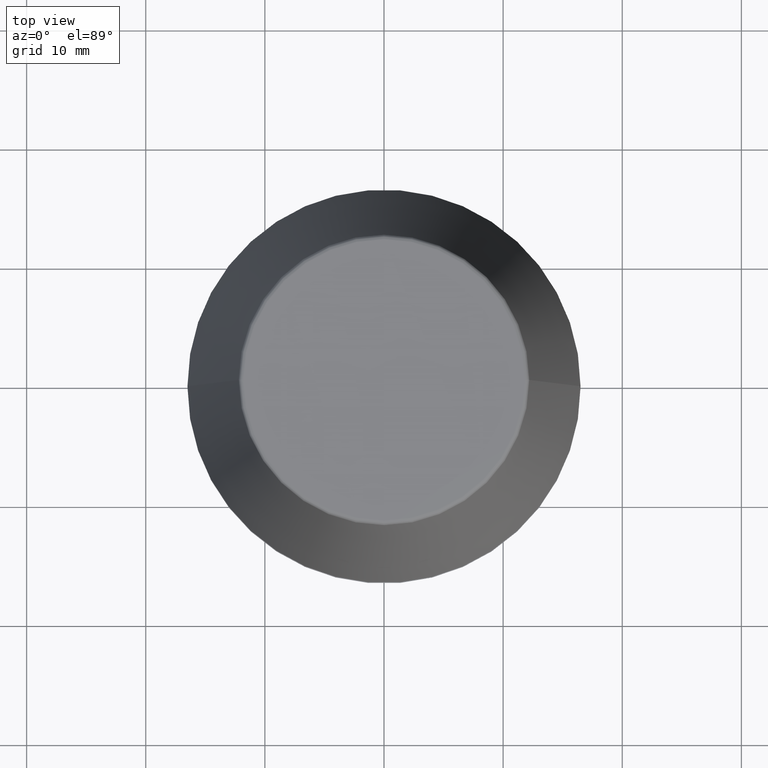
[diagram: clean part render]
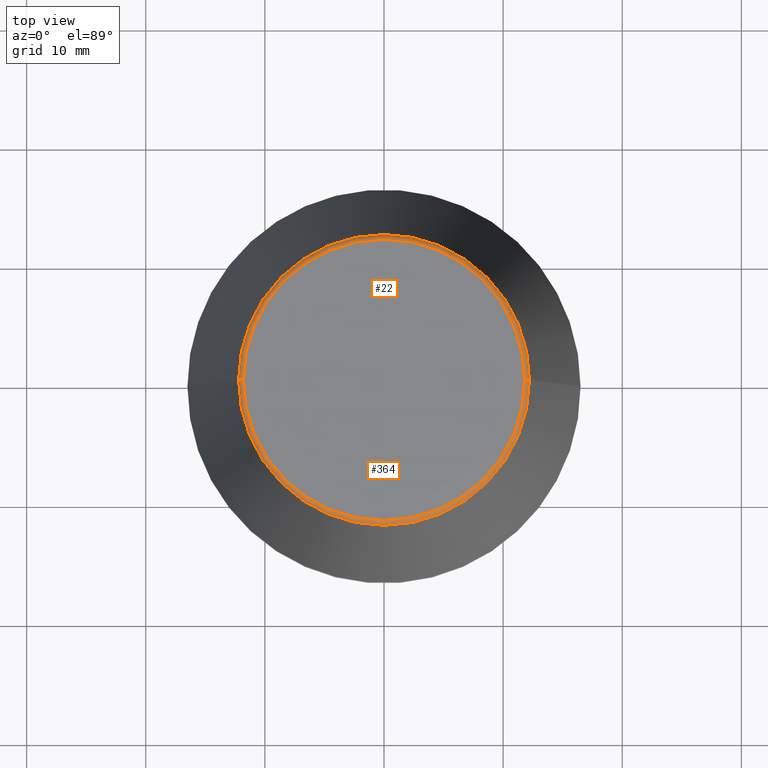
[diagram: same view with one multi-face feature highlighted, each face labeled with its STEP entity id]
A machine part, top view. The highlighted faces form ONE feature: a constant-radius fillet chain: 2 tangent blend faces with common blend radius 0.4 mm. The faces share edges in the B-rep.
Their STEP definitions:
[1] entity #22 (Torus):
#7 = CIRCLE ( 'NONE', #129, 11.80989888411031400 ) ;
#8 = CARTESIAN_POINT ( 'NONE',  ( -11.80989888411031400, 1.470550059081603400E-015, 40.00000000000000700 ) ) ;
#12 = AXIS2_PLACEMENT_3D ( 'NONE', #315, #149, #184 ) ;
#16 = DIRECTION ( 'NONE',  ( 1.000000000000000000, 0.0000000000000000000, 0.0000000000000000000 ) ) ;
#17 = TOROIDAL_SURFACE ( 'NONE', #356, 11.80989888411031400, 0.4000000000000026900 ) ;
#22 = ADVANCED_FACE ( 'NONE', ( #298 ), #17, .T. ) ;
#42 = CARTESIAN_POINT ( 'NONE',  ( 0.0000000000000000000, 0.0000000000000000000, 39.65566924038402900 ) ) ;
#45 = VERTEX_POINT ( 'NONE', #288 ) ;
#46 = ORIENTED_EDGE ( 'NONE', *, *, #53, .T. ) ;
#53 = EDGE_CURVE ( 'NONE', #45, #157, #172, .T. ) ;
#77 = CARTESIAN_POINT ( 'NONE',  ( 11.80989888411031400, 0.0000000000000000000, 39.60000000000000100 ) ) ;
#84 = VERTEX_POINT ( 'NONE', #8 ) ;
#89 = DIRECTION ( 'NONE',  ( 0.0000000000000000000, -1.000000000000000000, 0.0000000000000000000 ) ) ;
#94 = DIRECTION ( 'NONE',  ( 1.000000000000000000, 0.0000000000000000000, 0.0000000000000000000 ) ) ;
#110 = CIRCLE ( 'NONE', #12, 0.4000000000000028000 ) ;
#114 = CARTESIAN_POINT ( 'NONE',  ( 11.80989888411031400, 0.0000000000000000000, 40.00000000000000700 ) ) ;
#123 = AXIS2_PLACEMENT_3D ( 'NONE', #77, #89, #280 ) ;
#129 = AXIS2_PLACEMENT_3D ( 'NONE', #335, #283, #326 ) ;
#149 = DIRECTION ( 'NONE',  ( 1.224646799147353200E-016, 1.000000000000000000, 0.0000000000000000000 ) ) ;
#152 = AXIS2_PLACEMENT_3D ( 'NONE', #42, #285, #94 ) ;
#157 = VERTEX_POINT ( 'NONE', #277 ) ;
#165 = EDGE_CURVE ( 'NONE', #45, #336, #327, .T. ) ;
#172 = CIRCLE ( 'NONE', #152, 12.20600611160694300 ) ;
#184 = DIRECTION ( 'NONE',  ( -1.000000000000000000, 1.224646799147352500E-016, 0.0000000000000000000 ) ) ;
#204 = DIRECTION ( 'NONE',  ( -0.0000000000000000000, -0.0000000000000000000, 1.000000000000000000 ) ) ;
#211 = ORIENTED_EDGE ( 'NONE', *, *, #228, .T. ) ;
#228 = EDGE_CURVE ( 'NONE', #157, #84, #110, .T. ) ;
#234 = EDGE_CURVE ( 'NONE', #336, #84, #7, .T. ) ;
#247 = EDGE_LOOP ( 'NONE', ( #46, #211, #303, #341 ) ) ;
#257 = CARTESIAN_POINT ( 'NONE',  ( 0.0000000000000000000, 0.0000000000000000000, 39.60000000000000100 ) ) ;
#277 = CARTESIAN_POINT ( 'NONE',  ( -12.20600611160694300, 0.0000000000000000000, 39.65566924038402900 ) ) ;
#280 = DIRECTION ( 'NONE',  ( 0.0000000000000000000, 0.0000000000000000000, -1.000000000000000000 ) ) ;
#283 = DIRECTION ( 'NONE',  ( -0.0000000000000000000, -0.0000000000000000000, 1.000000000000000000 ) ) ;
#285 = DIRECTION ( 'NONE',  ( -0.0000000000000000000, -0.0000000000000000000, 1.000000000000000000 ) ) ;
#288 = CARTESIAN_POINT ( 'NONE',  ( 12.20600611160694300, 1.757755848304969800E-015, 39.65566924038402900 ) ) ;
#298 = FACE_OUTER_BOUND ( 'NONE', #247, .T. ) ;
#303 = ORIENTED_EDGE ( 'NONE', *, *, #234, .F. ) ;
#315 = CARTESIAN_POINT ( 'NONE',  ( -11.80989888411031400, 1.446295486667959300E-015, 39.60000000000000100 ) ) ;
#326 = DIRECTION ( 'NONE',  ( 1.000000000000000000, 0.0000000000000000000, 0.0000000000000000000 ) ) ;
#327 = CIRCLE ( 'NONE', #123, 0.4000000000000045200 ) ;
#335 = CARTESIAN_POINT ( 'NONE',  ( 0.0000000000000000000, 0.0000000000000000000, 40.00000000000000700 ) ) ;
#336 = VERTEX_POINT ( 'NONE', #114 ) ;
#341 = ORIENTED_EDGE ( 'NONE', *, *, #165, .F. ) ;
#356 = AXIS2_PLACEMENT_3D ( 'NONE', #257, #204, #16 ) ;
[2] entity #364 (Torus):
#8 = CARTESIAN_POINT ( 'NONE',  ( -11.80989888411031400, 1.470550059081603400E-015, 40.00000000000000700 ) ) ;
#12 = AXIS2_PLACEMENT_3D ( 'NONE', #315, #149, #184 ) ;
#15 = EDGE_CURVE ( 'NONE', #84, #336, #85, .T. ) ;
#25 = CIRCLE ( 'NONE', #322, 12.20600611160694300 ) ;
#40 = CARTESIAN_POINT ( 'NONE',  ( 0.0000000000000000000, 0.0000000000000000000, 39.65566924038402900 ) ) ;
#45 = VERTEX_POINT ( 'NONE', #288 ) ;
#56 = EDGE_CURVE ( 'NONE', #157, #45, #25, .T. ) ;
#59 = DIRECTION ( 'NONE',  ( 1.000000000000000000, 0.0000000000000000000, 0.0000000000000000000 ) ) ;
#77 = CARTESIAN_POINT ( 'NONE',  ( 11.80989888411031400, 0.0000000000000000000, 39.60000000000000100 ) ) ;
#84 = VERTEX_POINT ( 'NONE', #8 ) ;
#85 = CIRCLE ( 'NONE', #170, 11.80989888411031400 ) ;
#89 = DIRECTION ( 'NONE',  ( 0.0000000000000000000, -1.000000000000000000, 0.0000000000000000000 ) ) ;
#110 = CIRCLE ( 'NONE', #12, 0.4000000000000028000 ) ;
#114 = CARTESIAN_POINT ( 'NONE',  ( 11.80989888411031400, 0.0000000000000000000, 40.00000000000000700 ) ) ;
#117 = ORIENTED_EDGE ( 'NONE', *, *, #56, .T. ) ;
#123 = AXIS2_PLACEMENT_3D ( 'NONE', #77, #89, #280 ) ;
#149 = DIRECTION ( 'NONE',  ( 1.224646799147353200E-016, 1.000000000000000000, 0.0000000000000000000 ) ) ;
#155 = DIRECTION ( 'NONE',  ( -0.0000000000000000000, -0.0000000000000000000, 1.000000000000000000 ) ) ;
#157 = VERTEX_POINT ( 'NONE', #277 ) ;
#160 = AXIS2_PLACEMENT_3D ( 'NONE', #311, #155, #59 ) ;
#164 = EDGE_LOOP ( 'NONE', ( #225, #117, #284, #217 ) ) ;
#165 = EDGE_CURVE ( 'NONE', #45, #336, #327, .T. ) ;
#166 = DIRECTION ( 'NONE',  ( 1.000000000000000000, 0.0000000000000000000, 0.0000000000000000000 ) ) ;
#170 = AXIS2_PLACEMENT_3D ( 'NONE', #382, #260, #317 ) ;
#184 = DIRECTION ( 'NONE',  ( -1.000000000000000000, 1.224646799147352500E-016, 0.0000000000000000000 ) ) ;
#217 = ORIENTED_EDGE ( 'NONE', *, *, #15, .F. ) ;
#225 = ORIENTED_EDGE ( 'NONE', *, *, #228, .F. ) ;
#228 = EDGE_CURVE ( 'NONE', #157, #84, #110, .T. ) ;
#260 = DIRECTION ( 'NONE',  ( -0.0000000000000000000, -0.0000000000000000000, 1.000000000000000000 ) ) ;
#277 = CARTESIAN_POINT ( 'NONE',  ( -12.20600611160694300, 0.0000000000000000000, 39.65566924038402900 ) ) ;
#279 = FACE_OUTER_BOUND ( 'NONE', #164, .T. ) ;
#280 = DIRECTION ( 'NONE',  ( 0.0000000000000000000, 0.0000000000000000000, -1.000000000000000000 ) ) ;
#284 = ORIENTED_EDGE ( 'NONE', *, *, #165, .T. ) ;
#288 = CARTESIAN_POINT ( 'NONE',  ( 12.20600611160694300, 1.757755848304969800E-015, 39.65566924038402900 ) ) ;
#310 = DIRECTION ( 'NONE',  ( -0.0000000000000000000, -0.0000000000000000000, 1.000000000000000000 ) ) ;
#311 = CARTESIAN_POINT ( 'NONE',  ( 0.0000000000000000000, 0.0000000000000000000, 39.60000000000000100 ) ) ;
#315 = CARTESIAN_POINT ( 'NONE',  ( -11.80989888411031400, 1.446295486667959300E-015, 39.60000000000000100 ) ) ;
#317 = DIRECTION ( 'NONE',  ( 1.000000000000000000, 0.0000000000000000000, 0.0000000000000000000 ) ) ;
#322 = AXIS2_PLACEMENT_3D ( 'NONE', #40, #310, #166 ) ;
#327 = CIRCLE ( 'NONE', #123, 0.4000000000000045200 ) ;
#330 = TOROIDAL_SURFACE ( 'NONE', #160, 11.80989888411031400, 0.4000000000000026900 ) ;
#336 = VERTEX_POINT ( 'NONE', #114 ) ;
#364 = ADVANCED_FACE ( 'NONE', ( #279 ), #330, .T. ) ;
#382 = CARTESIAN_POINT ( 'NONE',  ( 0.0000000000000000000, 0.0000000000000000000, 40.00000000000000700 ) ) ;